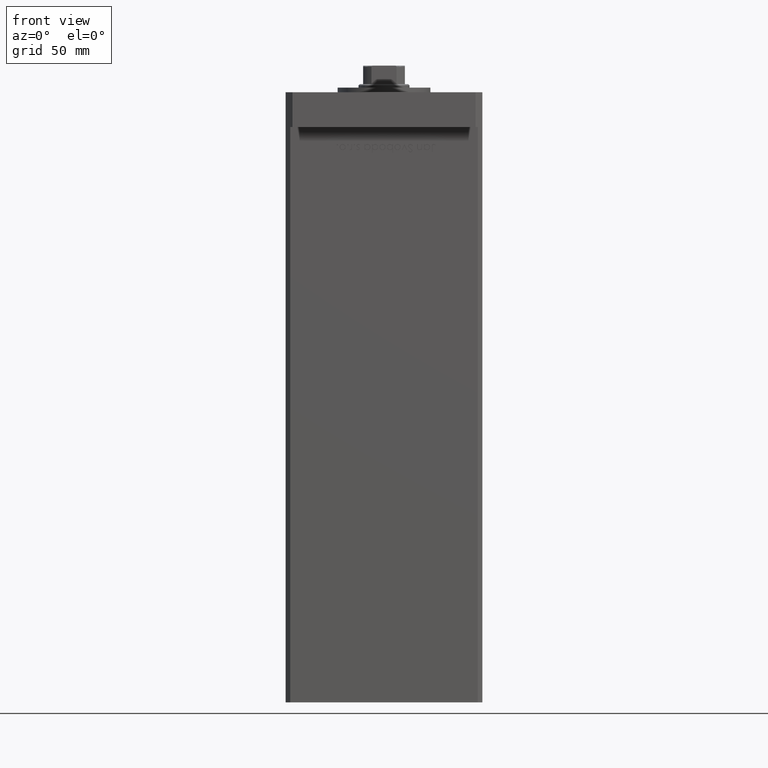
[diagram: clean part render]
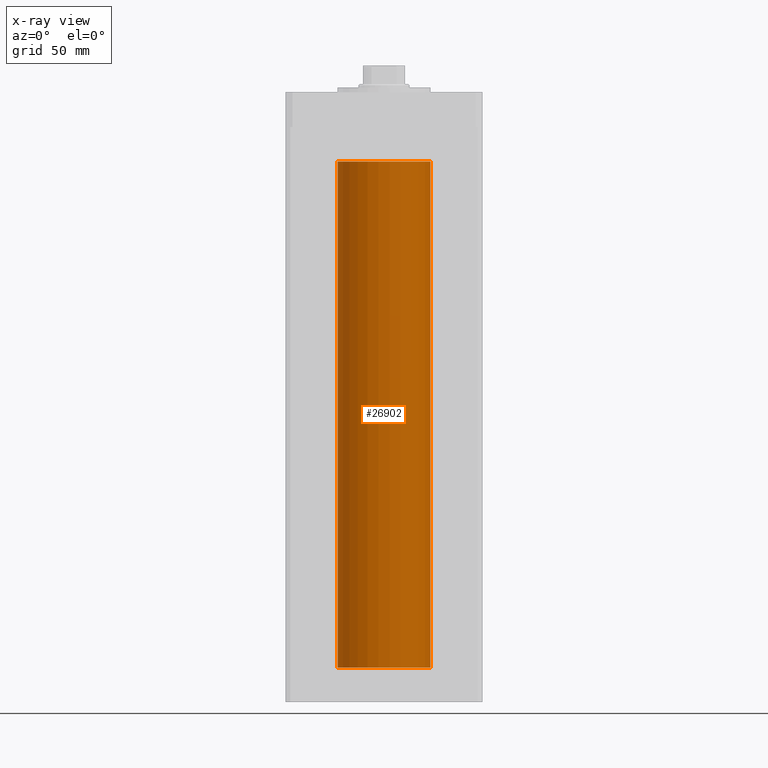
[diagram: x-ray — body ghosted, one internal face saturated and labeled with its STEP entity id]
A machine part, front view, then the same camera in x-ray: the body is ghosted and one INTERNAL B-rep face — a face not visible from any outside direction — is saturated and labeled: STEP entity #26902.
In plain terms, the highlighted cylindrical surface (partial cylindrical patch) has radius 20 mm, axis along (-0, -0, -1).
Its self-contained STEP definition (entity closure, byte-faithful):
#78 = AXIS2_PLACEMENT_3D ( 'NONE', #29582, #33647, #24983 ) ;
#626 = LINE ( 'NONE', #42097, #20203 ) ;
#801 = ORIENTED_EDGE ( 'NONE', *, *, #2405, .T. ) ;
#2405 = EDGE_CURVE ( 'NONE', #46487, #47992, #20877, .T. ) ;
#3086 = FACE_OUTER_BOUND ( 'NONE', #22616, .T. ) ;
#4607 = DIRECTION ( 'NONE',  ( -0.000000000000000000, 0.000000000000000000, 1.000000000000000000 ) ) ;
#6873 = AXIS2_PLACEMENT_3D ( 'NONE', #23981, #49165, #37245 ) ;
#8744 = DIRECTION ( 'NONE',  ( -0.000000000000000000, -0.000000000000000000, -1.000000000000000000 ) ) ;
#8939 = DIRECTION ( 'NONE',  ( 1.000000000000000000, 0.000000000000000000, 0.000000000000000000 ) ) ;
#8961 = EDGE_CURVE ( 'NONE', #46487, #25011, #626, .T. ) ;
#13188 = CARTESIAN_POINT ( 'NONE',  ( 20.00000000000000000, 2.449293598294706513E-15, 218.5000000000000000 ) ) ;
#13538 = DIRECTION ( 'NONE',  ( -0.000000000000000000, -0.000000000000000000, -1.000000000000000000 ) ) ;
#14693 = EDGE_CURVE ( 'NONE', #25011, #22701, #40161, .T. ) ;
#15522 = CARTESIAN_POINT ( 'NONE',  ( -20.00000000000000000, 0.000000000000000000, 218.5000000000000000 ) ) ;
#19695 = CARTESIAN_POINT ( 'NONE',  ( 20.00000000000000000, 2.449293598294706513E-15, 0.000000000000000000 ) ) ;
#20203 = VECTOR ( 'NONE', #8744, 1000.000000000000000 ) ;
#20877 = CIRCLE ( 'NONE', #78, 20.00000000000000000 ) ;
#22616 = EDGE_LOOP ( 'NONE', ( #801, #30279, #52178, #46082 ) ) ;
#22701 = VERTEX_POINT ( 'NONE', #19695 ) ;
#23981 = CARTESIAN_POINT ( 'NONE',  ( 0.000000000000000000, 0.000000000000000000, 218.5000000000000000 ) ) ;
#24983 = DIRECTION ( 'NONE',  ( 1.000000000000000000, 0.000000000000000000, 0.000000000000000000 ) ) ;
#25011 = VERTEX_POINT ( 'NONE', #37571 ) ;
#26902 = ADVANCED_FACE ( 'NONE', ( #3086 ), #36983, .F. ) ;
#29156 = EDGE_CURVE ( 'NONE', #47992, #22701, #34132, .T. ) ;
#29582 = CARTESIAN_POINT ( 'NONE',  ( 0.000000000000000000, 0.000000000000000000, 218.5000000000000000 ) ) ;
#30279 = ORIENTED_EDGE ( 'NONE', *, *, #29156, .T. ) ;
#33647 = DIRECTION ( 'NONE',  ( -0.000000000000000000, 0.000000000000000000, 1.000000000000000000 ) ) ;
#34132 = LINE ( 'NONE', #50656, #40736 ) ;
#36983 = CYLINDRICAL_SURFACE ( 'NONE', #6873, 20.00000000000000000 ) ;
#37245 = DIRECTION ( 'NONE',  ( -1.000000000000000000, 0.000000000000000000, 0.000000000000000000 ) ) ;
#37571 = CARTESIAN_POINT ( 'NONE',  ( -20.00000000000000000, 0.000000000000000000, 0.000000000000000000 ) ) ;
#37694 = CARTESIAN_POINT ( 'NONE',  ( 0.000000000000000000, 0.000000000000000000, 0.000000000000000000 ) ) ;
#40161 = CIRCLE ( 'NONE', #46244, 20.00000000000000000 ) ;
#40736 = VECTOR ( 'NONE', #13538, 1000.000000000000000 ) ;
#42097 = CARTESIAN_POINT ( 'NONE',  ( -20.00000000000000000, 0.000000000000000000, 218.5000000000000000 ) ) ;
#46082 = ORIENTED_EDGE ( 'NONE', *, *, #8961, .F. ) ;
#46244 = AXIS2_PLACEMENT_3D ( 'NONE', #37694, #4607, #8939 ) ;
#46487 = VERTEX_POINT ( 'NONE', #15522 ) ;
#47992 = VERTEX_POINT ( 'NONE', #13188 ) ;
#49165 = DIRECTION ( 'NONE',  ( -0.000000000000000000, -0.000000000000000000, -1.000000000000000000 ) ) ;
#50656 = CARTESIAN_POINT ( 'NONE',  ( 20.00000000000000000, 2.449293598294706513E-15, 218.5000000000000000 ) ) ;
#52178 = ORIENTED_EDGE ( 'NONE', *, *, #14693, .F. ) ;